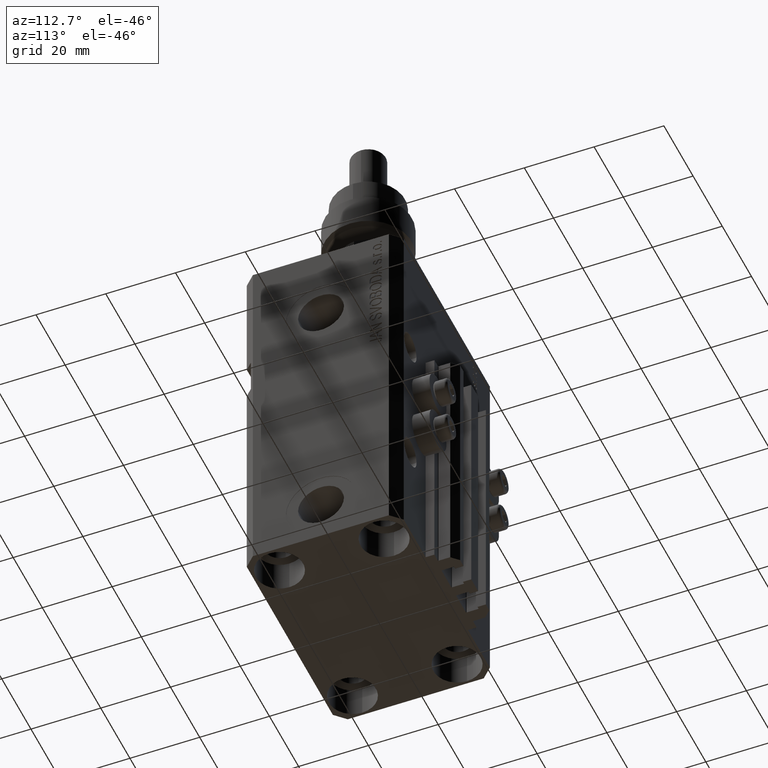
[diagram: clean part render]
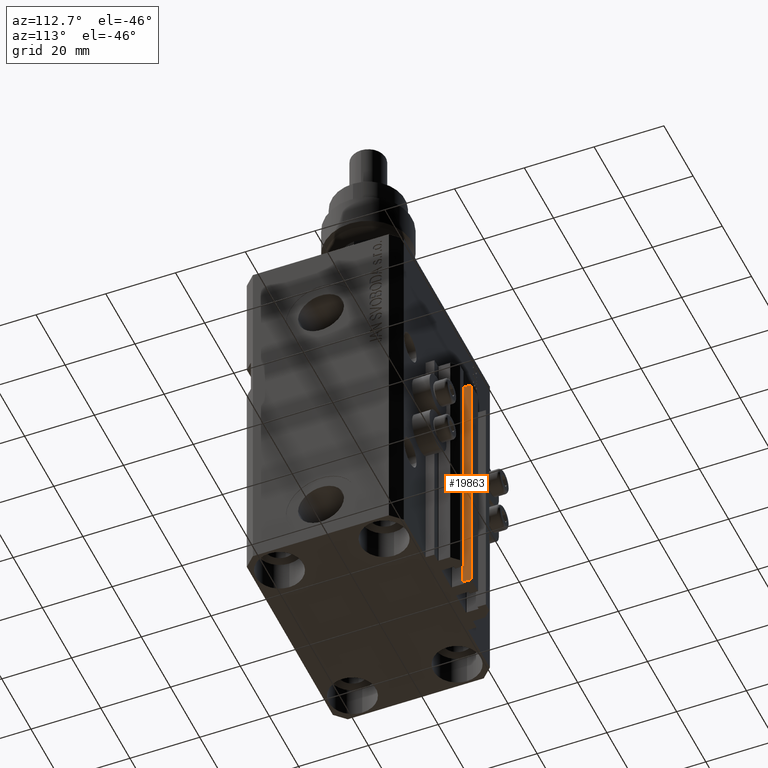
[diagram: same view with one face highlighted and labeled with its STEP entity id]
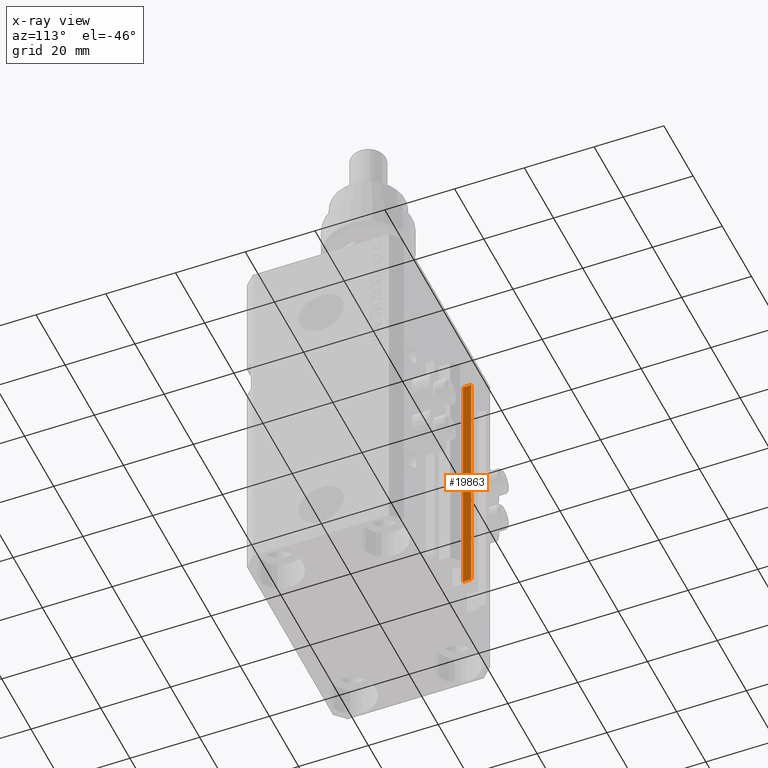
[diagram: x-ray of the same camera — body ghosted, the highlighted face saturated]
A machine part, auxiliary view. The second image highlights one B-rep face of the part: STEP entity #19863.
The next image is the same camera in x-ray: the body ghosted, the highlighted face saturated — about 0% of this face is hidden behind the body in this view.
In plain terms, the highlighted planar face has unit normal (1, 0, 0).
Its self-contained STEP definition (entity closure, byte-faithful):
#884 = AXIS2_PLACEMENT_3D ( 'NONE', #30763, #46499, #4407 ) ;
#1171 = CARTESIAN_POINT ( 'NONE',  ( 2.349999999999999645, 28.09999999999950049, -107.0000000000000000 ) ) ;
#1866 = ORIENTED_EDGE ( 'NONE', *, *, #31999, .T. ) ;
#4407 = DIRECTION ( 'NONE',  ( 0.000000000000000000, 0.000000000000000000, -1.000000000000000000 ) ) ;
#6918 = LINE ( 'NONE', #30934, #31865 ) ;
#8661 = ORIENTED_EDGE ( 'NONE', *, *, #44963, .F. ) ;
#9082 = DIRECTION ( 'NONE',  ( 0.000000000000000000, 0.000000000000000000, 1.000000000000000000 ) ) ;
#9343 = CARTESIAN_POINT ( 'NONE',  ( 2.349999999999999645, 28.09999999999950049, -107.0000000000000000 ) ) ;
#11551 = EDGE_CURVE ( 'NONE', #48399, #49111, #6918, .T. ) ;
#12155 = FACE_OUTER_BOUND ( 'NONE', #46208, .T. ) ;
#12370 = VERTEX_POINT ( 'NONE', #32498 ) ;
#12723 = CARTESIAN_POINT ( 'NONE',  ( 2.349999999999999645, 30.49999999999949907, -107.0000000000000000 ) ) ;
#15476 = LINE ( 'NONE', #50825, #48043 ) ;
#15972 = VERTEX_POINT ( 'NONE', #20268 ) ;
#17067 = EDGE_CURVE ( 'NONE', #48399, #15972, #48172, .T. ) ;
#17704 = ORIENTED_EDGE ( 'NONE', *, *, #17067, .F. ) ;
#19863 = ADVANCED_FACE ( 'NONE', ( #12155 ), #39781, .T. ) ;
#20268 = CARTESIAN_POINT ( 'NONE',  ( 2.349999999999999645, 28.09999999999950049, -33.00000000000000000 ) ) ;
#22674 = DIRECTION ( 'NONE',  ( 0.000000000000000000, 1.000000000000000000, 0.000000000000000000 ) ) ;
#27961 = CARTESIAN_POINT ( 'NONE',  ( 2.349999999999999645, 30.49999999999949907, -107.0000000000000000 ) ) ;
#28315 = DIRECTION ( 'NONE',  ( 0.000000000000000000, 0.000000000000000000, 1.000000000000000000 ) ) ;
#30763 = CARTESIAN_POINT ( 'NONE',  ( 2.349999999999999645, 28.09999999999950049, -107.0000000000000000 ) ) ;
#30934 = CARTESIAN_POINT ( 'NONE',  ( 2.349999999999999645, 28.09999999999950049, -107.0000000000000000 ) ) ;
#31865 = VECTOR ( 'NONE', #22674, 1000.000000000000000 ) ;
#31999 = EDGE_CURVE ( 'NONE', #49111, #12370, #40066, .T. ) ;
#32498 = CARTESIAN_POINT ( 'NONE',  ( 2.349999999999999645, 30.49999999999949907, -33.00000000000000000 ) ) ;
#35189 = ORIENTED_EDGE ( 'NONE', *, *, #11551, .T. ) ;
#39781 = PLANE ( 'NONE',  #884 ) ;
#40066 = LINE ( 'NONE', #27961, #44388 ) ;
#41967 = VECTOR ( 'NONE', #28315, 1000.000000000000000 ) ;
#44388 = VECTOR ( 'NONE', #9082, 1000.000000000000000 ) ;
#44963 = EDGE_CURVE ( 'NONE', #15972, #12370, #15476, .T. ) ;
#46208 = EDGE_LOOP ( 'NONE', ( #8661, #17704, #35189, #1866 ) ) ;
#46499 = DIRECTION ( 'NONE',  ( 1.000000000000000000, 0.000000000000000000, 0.000000000000000000 ) ) ;
#46694 = DIRECTION ( 'NONE',  ( 0.000000000000000000, 1.000000000000000000, 0.000000000000000000 ) ) ;
#48043 = VECTOR ( 'NONE', #46694, 1000.000000000000000 ) ;
#48172 = LINE ( 'NONE', #1171, #41967 ) ;
#48399 = VERTEX_POINT ( 'NONE', #9343 ) ;
#49111 = VERTEX_POINT ( 'NONE', #12723 ) ;
#50825 = CARTESIAN_POINT ( 'NONE',  ( 2.349999999999999645, 28.09999999999950049, -33.00000000000000000 ) ) ;